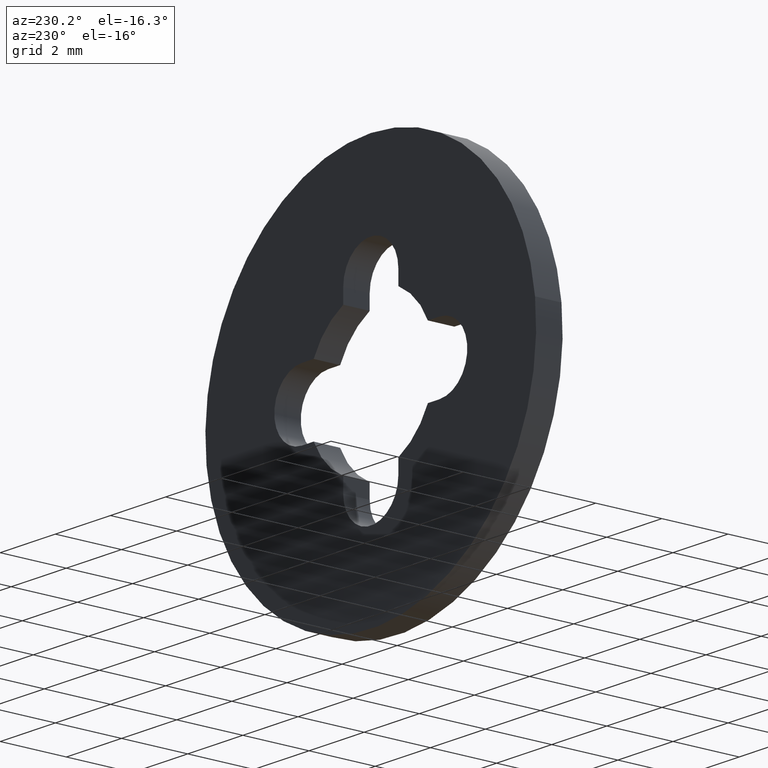
[diagram: clean part render]
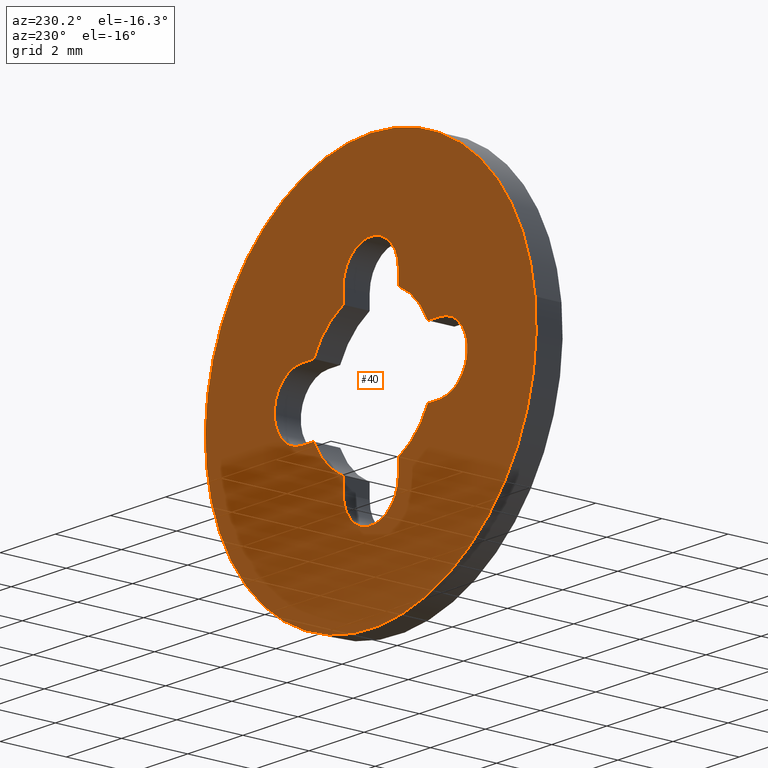
[diagram: same view with one face highlighted and labeled with its STEP entity id]
A machine part, auxiliary view. The second image highlights one B-rep face of the part: STEP entity #40.
In plain terms, the highlighted planar face has unit normal (-0, 1, 0).
Its self-contained STEP definition (entity closure, byte-faithful):
#40=ADVANCED_FACE('',(#61,#62),#60,.T.);
#60=PLANE('',#265);
#61=FACE_OUTER_BOUND('',#266,.T.);
#62=FACE_BOUND('',#267,.T.);
#262=CARTESIAN_POINT('',(-1.24707658145E+01,8.00000000000E-01,7.80000000000E+00));
#263=DIRECTION('',(-0.00000000000E+00,1.00000000000E+00,0.00000000000E+00));
#264=DIRECTION('',(1.00000000000E+00,0.00000000000E+00,6.72936637806E-17));
#265=AXIS2_PLACEMENT_3D('',#262,#263,#264);
#266=EDGE_LOOP('',(#364,#365,#366));
#267=EDGE_LOOP('',(#367,#368,#369,#370,#371,#372,#373,#374,#375,#376,#377,#378,#379,#380,#381,#382));
#364=ORIENTED_EDGE('',*,*,#476,.F.);
#365=ORIENTED_EDGE('',*,*,#477,.F.);
#366=ORIENTED_EDGE('',*,*,#478,.F.);
#367=ORIENTED_EDGE('',*,*,#479,.T.);
#368=ORIENTED_EDGE('',*,*,#480,.T.);
#369=ORIENTED_EDGE('',*,*,#481,.T.);
#370=ORIENTED_EDGE('',*,*,#482,.T.);
#371=ORIENTED_EDGE('',*,*,#483,.T.);
#372=ORIENTED_EDGE('',*,*,#484,.T.);
#373=ORIENTED_EDGE('',*,*,#485,.T.);
#374=ORIENTED_EDGE('',*,*,#486,.T.);
#375=ORIENTED_EDGE('',*,*,#487,.T.);
#376=ORIENTED_EDGE('',*,*,#488,.T.);
#377=ORIENTED_EDGE('',*,*,#489,.T.);
#378=ORIENTED_EDGE('',*,*,#490,.T.);
#379=ORIENTED_EDGE('',*,*,#491,.T.);
#380=ORIENTED_EDGE('',*,*,#492,.T.);
#381=ORIENTED_EDGE('',*,*,#493,.T.);
#382=ORIENTED_EDGE('',*,*,#494,.T.);
#476=EDGE_CURVE('',#532,#533,#534,.T.);
#477=EDGE_CURVE('',#540,#532,#541,.T.);
#478=EDGE_CURVE('',#533,#540,#547,.T.);
#479=EDGE_CURVE('',#553,#554,#555,.T.);
#480=EDGE_CURVE('',#554,#561,#562,.T.);
#481=EDGE_CURVE('',#561,#568,#569,.T.);
#482=EDGE_CURVE('',#568,#575,#576,.T.);
#483=EDGE_CURVE('',#575,#582,#583,.T.);
#484=EDGE_CURVE('',#582,#589,#590,.T.);
#485=EDGE_CURVE('',#589,#596,#597,.T.);
#486=EDGE_CURVE('',#596,#603,#604,.T.);
#487=EDGE_CURVE('',#603,#610,#611,.T.);
#488=EDGE_CURVE('',#610,#617,#618,.T.);
#489=EDGE_CURVE('',#617,#624,#625,.T.);
#490=EDGE_CURVE('',#624,#631,#632,.T.);
#491=EDGE_CURVE('',#631,#638,#639,.T.);
#492=EDGE_CURVE('',#638,#645,#646,.T.);
#493=EDGE_CURVE('',#645,#652,#653,.T.);
#494=EDGE_CURVE('',#652,#553,#659,.T.);
#532=VERTEX_POINT('',#906);
#533=VERTEX_POINT('',#907);
#534=CIRCLE('',#911,6.00000000000E+00);
#540=VERTEX_POINT('',#912);
#541=CIRCLE('',#916,6.00000000000E+00);
#547=CIRCLE('',#920,6.00000000000E+00);
#553=VERTEX_POINT('',#921);
#554=VERTEX_POINT('',#922);
#555=CIRCLE('',#926,1.00000000000E+00);
#561=VERTEX_POINT('',#927);
#562=LINE('',#928,#929);
#568=VERTEX_POINT('',#931);
#569=CIRCLE('',#935,2.30000000000E+00);
#575=VERTEX_POINT('',#936);
#576=LINE('',#937,#938);
#582=VERTEX_POINT('',#940);
#583=CIRCLE('',#944,1.00000000000E+00);
#589=VERTEX_POINT('',#945);
#590=LINE('',#946,#947);
#596=VERTEX_POINT('',#949);
#597=CIRCLE('',#953,2.30000000000E+00);
#603=VERTEX_POINT('',#954);
#604=LINE('',#955,#956);
#610=VERTEX_POINT('',#958);
#611=CIRCLE('',#962,1.00000000000E+00);
#617=VERTEX_POINT('',#963);
#618=LINE('',#964,#965);
#624=VERTEX_POINT('',#967);
#625=CIRCLE('',#971,2.30000000000E+00);
#631=VERTEX_POINT('',#972);
#632=LINE('',#973,#974);
#638=VERTEX_POINT('',#976);
#639=CIRCLE('',#980,1.00000000000E+00);
#645=VERTEX_POINT('',#981);
#646=LINE('',#982,#983);
#652=VERTEX_POINT('',#985);
#653=CIRCLE('',#989,2.30000000000E+00);
#659=LINE('',#990,#991);
#906=CARTESIAN_POINT('',(5.95805716504E+00,8.00000000000E-01,-7.08205350218E-01));
#907=CARTESIAN_POINT('',(-3.23074900166E-14,8.00000000000E-01,6.00000000000E+00));
#908=CARTESIAN_POINT('',(-8.09130540347E-13,8.00000000000E-01,-1.77813319624E-12));
#909=DIRECTION('',(6.53194715796E-17,-1.00000000000E+00,2.35995732097E-16));
#910=DIRECTION('',(1.29118937764E-13,2.35995732097E-16,1.00000000000E+00));
#911=AXIS2_PLACEMENT_3D('',#908,#909,#910);
#912=CARTESIAN_POINT('',(-5.95793466626E+00,8.00000000000E-01,7.09235160270E-01));
#913=CARTESIAN_POINT('',(-8.09130540347E-13,8.00000000000E-01,-1.77813319624E-12));
#914=DIRECTION('',(6.53194715796E-17,-1.00000000000E+00,2.35995732097E-16));
#915=DIRECTION('',(1.29118937764E-13,2.35995732097E-16,1.00000000000E+00));
#916=AXIS2_PLACEMENT_3D('',#913,#914,#915);
#917=CARTESIAN_POINT('',(-8.09130540347E-13,8.00000000000E-01,-1.77813319624E-12));
#918=DIRECTION('',(6.53194715796E-17,-1.00000000000E+00,2.35995732097E-16));
#919=DIRECTION('',(1.29118937764E-13,2.35995732097E-16,1.00000000000E+00));
#920=AXIS2_PLACEMENT_3D('',#917,#918,#919);
#921=CARTESIAN_POINT('',(2.50000000000E+00,8.00000000000E-01,-1.00000000000E+00));
#922=CARTESIAN_POINT('',(2.50000000000E+00,8.00000000000E-01,1.00000000000E+00));
#923=CARTESIAN_POINT('',(2.50000000000E+00,8.00000000000E-01,0.00000000000E+00));
#924=DIRECTION('',(-3.92523114671E-17,-1.00000000000E+00,0.00000000000E+00));
#925=DIRECTION('',(-1.22460635382E-16,4.80686300248E-33,-1.00000000000E+00));
#926=AXIS2_PLACEMENT_3D('',#923,#924,#925);
#927=CARTESIAN_POINT('',(2.07123151772E+00,8.00000000000E-01,1.00000000000E+00));
#928=CARTESIAN_POINT('',(2.50000000000E+00,8.00000000000E-01,1.00000000000E+00));
#929=VECTOR('',#930,4.28768482279E-01);
#930=DIRECTION('',(-1.00000000000E+00,0.00000000000E+00,0.00000000000E+00));
#931=CARTESIAN_POINT('',(1.00000000000E+00,8.00000000000E-01,2.07123151772E+00));
#932=CARTESIAN_POINT('',(-6.66133814775E-16,8.00000000000E-01,-4.44089209850E-16));
#933=DIRECTION('',(-2.38971064070E-17,-1.00000000000E+00,4.94964399725E-17));
#934=DIRECTION('',(-9.00535442487E-01,4.62223186653E-32,-4.34782608696E-01));
#935=AXIS2_PLACEMENT_3D('',#932,#933,#934);
#936=CARTESIAN_POINT('',(1.00000000000E+00,8.00000000000E-01,2.50000000000E+00));
#937=CARTESIAN_POINT('',(1.00000000000E+00,8.00000000000E-01,2.07123151772E+00));
#938=VECTOR('',#939,4.28768482279E-01);
#939=DIRECTION('',(0.00000000000E+00,0.00000000000E+00,1.00000000000E+00));
#940=CARTESIAN_POINT('',(-1.00000000000E+00,8.00000000000E-01,2.50000000000E+00));
#941=CARTESIAN_POINT('',(-5.49560397189E-15,8.00000000000E-01,2.50000000000E+00));
#942=DIRECTION('',(-2.09178335811E-31,-1.00000000000E+00,-3.92523114671E-17));
#943=DIRECTION('',(1.00000000000E+00,4.80686300248E-33,-5.45153115358E-15));
#944=AXIS2_PLACEMENT_3D('',#941,#942,#943);
#945=CARTESIAN_POINT('',(-1.00000000000E+00,8.00000000000E-01,2.07123151772E+00));
#946=CARTESIAN_POINT('',(-1.00000000000E+00,8.00000000000E-01,2.50000000000E+00));
#947=VECTOR('',#948,4.28768482279E-01);
#948=DIRECTION('',(-4.19471433705E-14,0.00000000000E+00,-1.00000000000E+00));
#949=CARTESIAN_POINT('',(-2.07123151772E+00,8.00000000000E-01,1.00000000000E+00));
#950=CARTESIAN_POINT('',(-4.66293670343E-15,8.00000000000E-01,5.77315972805E-15));
#951=DIRECTION('',(-3.56782446477E-16,-1.00000000000E+00,7.38979048112E-16));
#952=DIRECTION('',(4.34782608696E-01,-8.20599626897E-16,-9.00535442487E-01));
#953=AXIS2_PLACEMENT_3D('',#950,#951,#952);
#954=CARTESIAN_POINT('',(-2.50000000000E+00,8.00000000000E-01,1.00000000000E+00));
#955=CARTESIAN_POINT('',(-2.07123151772E+00,8.00000000000E-01,1.00000000000E+00));
#956=VECTOR('',#957,4.28768482279E-01);
#957=DIRECTION('',(-1.00000000000E+00,0.00000000000E+00,0.00000000000E+00));
#958=CARTESIAN_POINT('',(-2.50000000000E+00,8.00000000000E-01,-1.00000000000E+00));
#959=CARTESIAN_POINT('',(-2.50000000000E+00,8.00000000000E-01,0.00000000000E+00));
#960=DIRECTION('',(3.92523114671E-17,-1.00000000000E+00,0.00000000000E+00));
#961=DIRECTION('',(1.22460635382E-16,4.80686300248E-33,1.00000000000E+00));
#962=AXIS2_PLACEMENT_3D('',#959,#960,#961);
#963=CARTESIAN_POINT('',(-2.07123151772E+00,8.00000000000E-01,-1.00000000000E+00));
#964=CARTESIAN_POINT('',(-2.50000000000E+00,8.00000000000E-01,-1.00000000000E+00));
#965=VECTOR('',#966,4.28768482279E-01);
#966=DIRECTION('',(1.00000000000E+00,0.00000000000E+00,0.00000000000E+00));
#967=CARTESIAN_POINT('',(-1.00000000000E+00,8.00000000000E-01,-2.07123151772E+00));
#968=CARTESIAN_POINT('',(3.33066907388E-15,8.00000000000E-01,2.88657986403E-15));
#969=DIRECTION('',(-7.38979048112E-16,-1.00000000000E+00,-3.56782446477E-16));
#970=DIRECTION('',(9.00535442487E-01,-8.20599626897E-16,4.34782608696E-01));
#971=AXIS2_PLACEMENT_3D('',#968,#969,#970);
#972=CARTESIAN_POINT('',(-1.00000000000E+00,8.00000000000E-01,-2.50000000000E+00));
#973=CARTESIAN_POINT('',(-1.00000000000E+00,8.00000000000E-01,-2.07123151772E+00));
#974=VECTOR('',#975,4.28768482279E-01);
#975=DIRECTION('',(4.66079370784E-15,0.00000000000E+00,-1.00000000000E+00));
#976=CARTESIAN_POINT('',(1.00000000000E+00,8.00000000000E-01,-2.49999982547E+00));
#977=CARTESIAN_POINT('',(-8.87137725789E-15,8.00000000000E-01,-2.50000000000E+00));
#978=DIRECTION('',(0.00000000000E+00,-1.00000000000E+00,-0.00000000000E+00));
#979=DIRECTION('',(-1.00000000000E+00,0.00000000000E+00,-9.20341277147E-15));
#980=AXIS2_PLACEMENT_3D('',#977,#978,#979);
#981=CARTESIAN_POINT('',(1.00000000000E+00,8.00000000000E-01,-2.07123151772E+00));
#982=CARTESIAN_POINT('',(1.00000000000E+00,8.00000000000E-01,-2.49999982547E+00));
#983=VECTOR('',#984,4.28768307746E-01);
#984=DIRECTION('',(9.32159121008E-15,0.00000000000E+00,1.00000000000E+00));
#985=CARTESIAN_POINT('',(2.07123151772E+00,8.00000000000E-01,-1.00000000000E+00));
#986=CARTESIAN_POINT('',(-4.21884749358E-15,8.00000000000E-01,4.44089209850E-15));
#987=DIRECTION('',(4.94964399725E-17,-1.00000000000E+00,2.38971064070E-17));
#988=DIRECTION('',(-4.34782608696E-01,-4.31408307543E-32,9.00535442487E-01));
#989=AXIS2_PLACEMENT_3D('',#986,#987,#988);
#990=CARTESIAN_POINT('',(2.07123151772E+00,8.00000000000E-01,-1.00000000000E+00));
#991=VECTOR('',#992,4.28768482279E-01);
#992=DIRECTION('',(1.00000000000E+00,0.00000000000E+00,0.00000000000E+00));